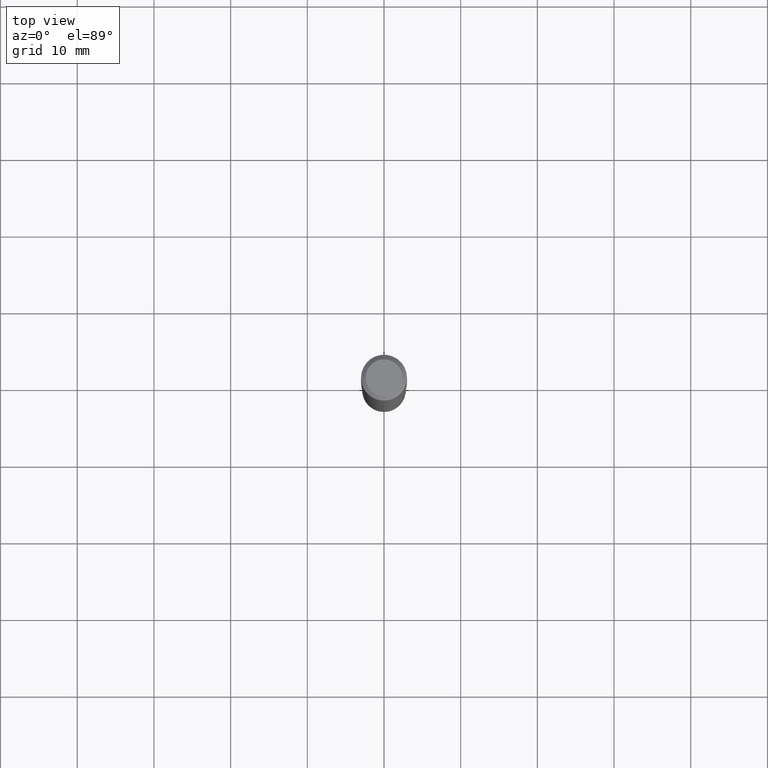
[diagram: clean part render]
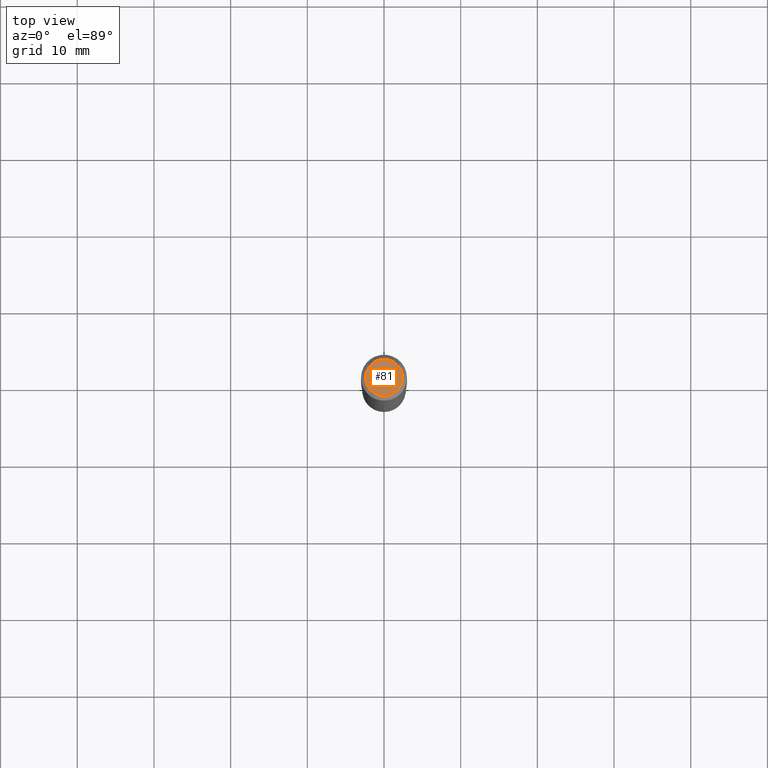
[diagram: same view with one face highlighted and labeled with its STEP entity id]
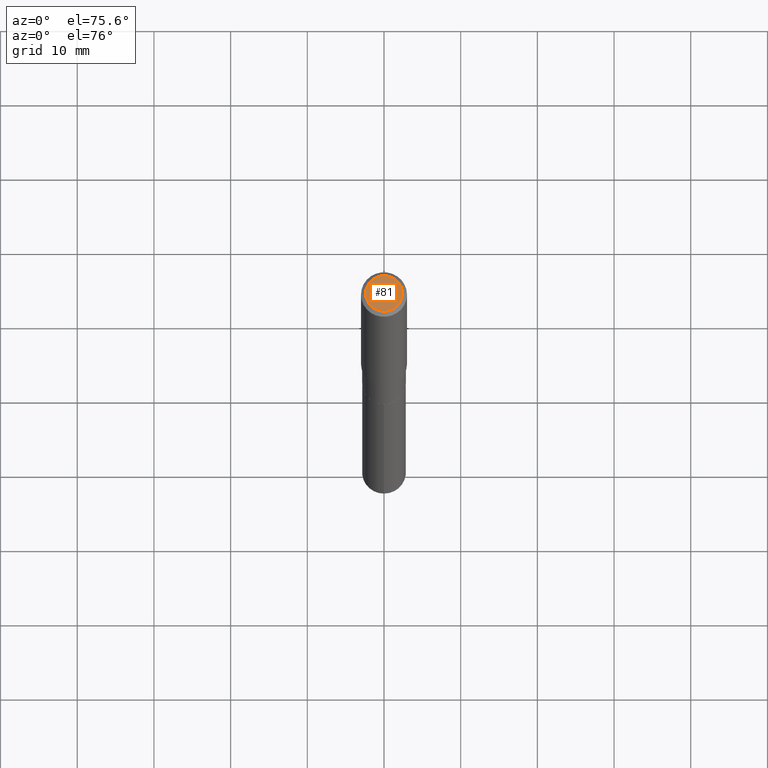
[diagram: same view with one face highlighted and labeled with its STEP entity id]
A machine part, top view. The second image highlights one B-rep face of the part: STEP entity #81.
A second angle (auxiliary view) of the same face is appended — the face is thin or edge-on in the first view.
In plain terms, the highlighted planar face has unit normal (0, -0, -1).
Its self-contained STEP definition (entity closure, byte-faithful):
#12 = CIRCLE ( 'NONE', #303, 0.09447999999999998066 ) ;
#28 = PLANE ( 'NONE',  #424 ) ;
#65 = CARTESIAN_POINT ( 'NONE',  ( 2.358133508849003952E-46, -3.366789680499277518E-32, -9.642868896486260050E-18 ) ) ;
#76 = AXIS2_PLACEMENT_3D ( 'NONE', #127, #464, #241 ) ;
#81 = ADVANCED_FACE ( 'NONE', ( #210 ), #28, .F. ) ;
#118 = DIRECTION ( 'NONE',  ( -2.445468806185136597E-29, 3.491481338843145583E-15, 1.000000000000000000 ) ) ;
#126 = VERTEX_POINT ( 'NONE', #180 ) ;
#127 = CARTESIAN_POINT ( 'NONE',  ( 4.716267017698007905E-46, -6.733579360998555036E-32, -1.928573779297252010E-17 ) ) ;
#135 = DIRECTION ( 'NONE',  ( 2.438088387897960049E-29, -3.491481338843145188E-15, -1.000000000000000000 ) ) ;
#156 = CARTESIAN_POINT ( 'NONE',  ( 4.716267017698007905E-46, -6.733579360998555036E-32, -1.928573779297252010E-17 ) ) ;
#179 = CIRCLE ( 'NONE', #76, 0.09447999999999998066 ) ;
#180 = CARTESIAN_POINT ( 'NONE',  ( -0.09447999999999998066, 7.009847083995354710E-16, -1.928573779297727792E-17 ) ) ;
#197 = ORIENTED_EDGE ( 'NONE', *, *, #436, .T. ) ;
#210 = FACE_OUTER_BOUND ( 'NONE', #232, .T. ) ;
#232 = EDGE_LOOP ( 'NONE', ( #339, #197 ) ) ;
#237 = EDGE_CURVE ( 'NONE', #126, #451, #12, .T. ) ;
#241 = DIRECTION ( 'NONE',  ( 1.000000000000000000, -6.982962677686267499E-15, 4.875432709231658792E-29 ) ) ;
#267 = DIRECTION ( 'NONE',  ( 1.000000000000000000, -6.982962677686267499E-15, 4.875432709231658792E-29 ) ) ;
#303 = AXIS2_PLACEMENT_3D ( 'NONE', #156, #118, #267 ) ;
#339 = ORIENTED_EDGE ( 'NONE', *, *, #237, .T. ) ;
#375 = DIRECTION ( 'NONE',  ( -1.000000000000000000, 6.982962677686265922E-15, -4.876176775795935793E-29 ) ) ;
#424 = AXIS2_PLACEMENT_3D ( 'NONE', #65, #135, #375 ) ;
#436 = EDGE_CURVE ( 'NONE', #451, #126, #179, .T. ) ;
#451 = VERTEX_POINT ( 'NONE', #462 ) ;
#462 = CARTESIAN_POINT ( 'NONE',  ( 0.09447999999999998066, -7.704367267948738690E-16, -1.928573779296752193E-17 ) ) ;
#464 = DIRECTION ( 'NONE',  ( -2.445468806185136597E-29, 3.491481338843145583E-15, 1.000000000000000000 ) ) ;